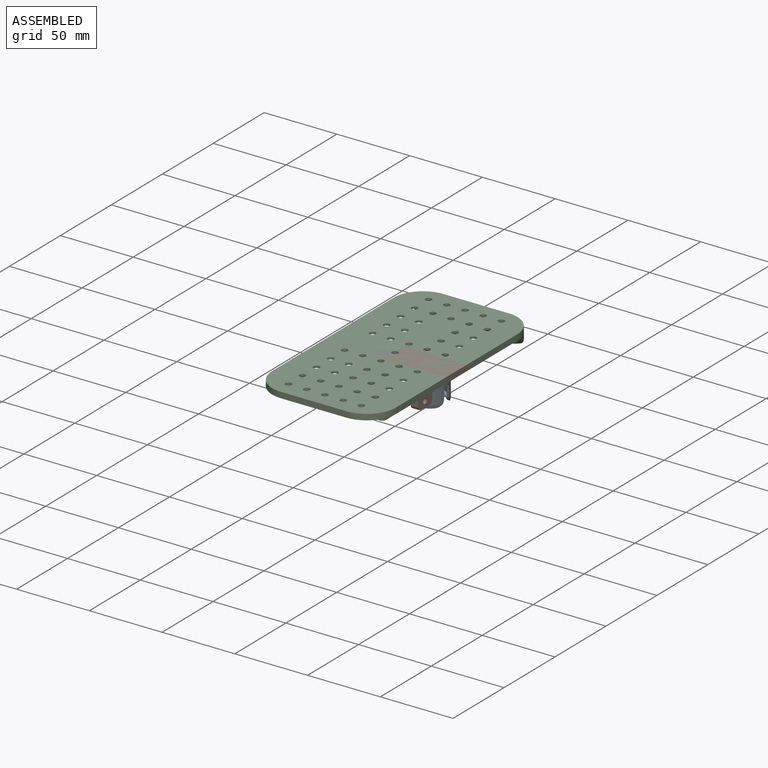
[diagram: assembled view]
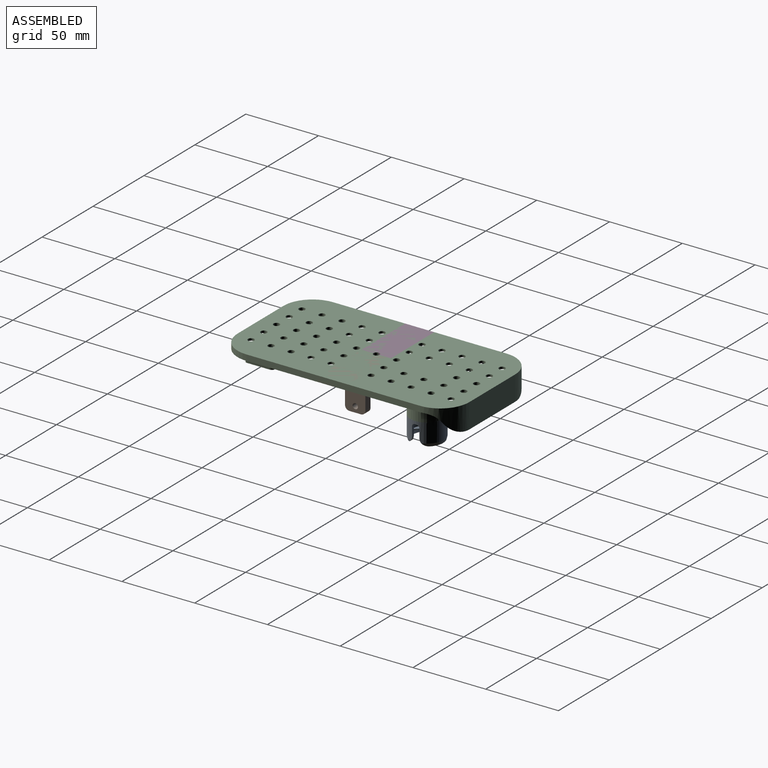
[diagram: assembled view, second angle]
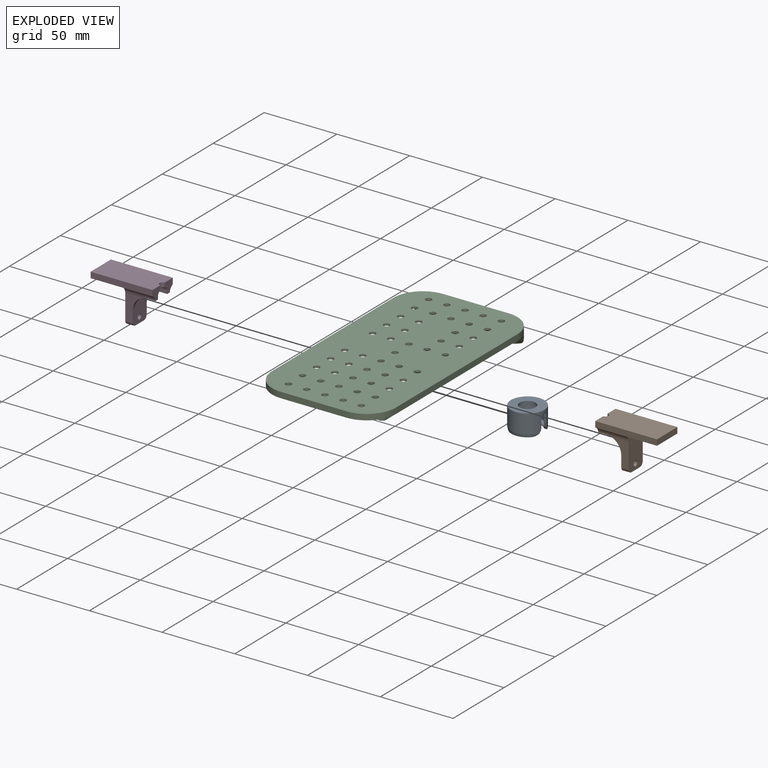
[diagram: exploded view]
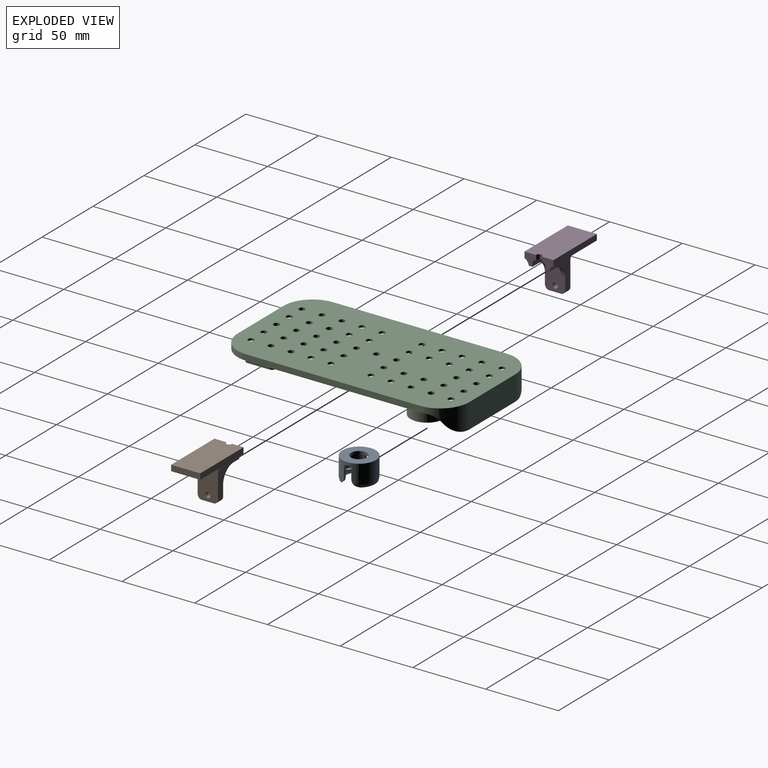
[diagram: exploded view, second angle]
ASSEMBLY  parts=4 mates=2
PART A: 38 faces, bbox 23x23x15 mm
  f0: cylinder r=9.8mm len=19.09mm, axis (0,0,-1), area 218.6mm2, adj f1,f31,f32,f33,f34,f35,f36,f37
  f1: cylinder r=2mm len=2.7mm, axis (-1,0,0), area 6.5mm2, adj f0,f2,f30,f31,f37
  f2: cylinder r=11.5mm len=23mm, axis (0,0,-1), area 825.7mm2, adj f1,f3,f14,f15,f23,f25,f26,f27
  f3: plane 6x1.75mm, normal (0,1,0), area 10.5mm2, adj f2,f4,f14,f29
  f4: cylinder r=9.8mm len=19.09mm, axis (0,0,-1), area 218.6mm2, adj f3,f5,f6,f14,f25,f26,f27,f29
  f5: torus R=8.8mm, axis (0,0,1), area 42.3mm2, adj f4,f14,f25,f30
  f6: cone r=9.8mm half-angle=5.9deg, axis (0,0,-1), area 34.2mm2, adj f4,f7,f27,f29
  f7: torus R=0.25mm, axis (0,0,-1), area 32mm2, adj f6,f8,f10,f11,f12,f13
  f8: torus R=9.4mm, axis (0,0,1), area 4.6mm2, adj f7,f9,f10,f13
  f9: plane 16.09x3.5mm, normal (0,0,1), area 24.3mm2, adj f8,f27,f28,f29
  f10: bspline ~5.62x5.44mm, area 1.4mm2, adj f7,f8,f12,f29
  f11: cone r=9.8mm half-angle=5.9deg, axis (0,0,-1), area 0.9mm2, adj f7,f13,f27
  f12: cone r=9.8mm half-angle=5.9deg, axis (0,0,-1), area 0.9mm2, adj f7,f10,f29
  f13: bspline ~5.62x5.44mm, area 1.4mm2, adj f7,f8,f11,f27
  f14: cylinder r=2mm len=2.7mm, axis (1,0,0), area 6.5mm2, adj f2,f3,f4,f5,f30
  f15: cone r=11mm half-angle=14deg, axis (0,0,-1), area 48.4mm2, adj f2,f16,f34,f36
  f16: plane 16.09x3.5mm, normal (0,0,1), area 24.3mm2, adj f15,f17,f34,f36
  f17: torus R=9.4mm, axis (0,0,1), area 4.6mm2, adj f16,f18,f21,f22
  f18: torus R=0.25mm, axis (0,0,-1), area 32mm2, adj f17,f19,f20,f21,f22,f35
  f19: cone r=9.8mm half-angle=5.9deg, axis (0,0,-1), area 0.9mm2, adj f18,f22,f34
  f20: cone r=9.8mm half-angle=5.9deg, axis (0,0,-1), area 0.9mm2, adj f18,f21,f36
  f21: bspline ~5.62x5.44mm, area 1.4mm2, adj f17,f18,f20,f36
  f22: bspline ~5.62x5.44mm, area 1.4mm2, adj f17,f18,f19,f34
  f23: plane 23x23mm, normal (0,0,-1), area 320.4mm2, adj f2,f24
  f24: cylinder r=5.5mm len=11mm, axis (0,0,-1), area 69.1mm2, adj f23,f30
  f25: cylinder r=2mm len=2.7mm, axis (1,0,0), area 6.5mm2, adj f2,f4,f5,f26,f30
  f26: plane 6x1.75mm, normal (0,1,0), area 10.5mm2, adj f2,f4,f25,f27
  f27: cylinder r=5mm len=5.56mm, axis (-1,0,0), area 14.4mm2, adj f2,f4,f6,f9,f11,f13,f26,f28
  f28: cone r=11mm half-angle=14deg, axis (0,0,-1), area 48.4mm2, adj f2,f9,f27,f29
  f29: cylinder r=5mm len=5.56mm, axis (-1,0,0), area 14.4mm2, adj f2,f3,f4,f6,f9,f10,f12,f28
  f30: plane 23x17.6mm, normal (0,0,1), area 153.7mm2, adj f1,f2,f5,f14,f24,f25,f31,f32
  f31: torus R=8.8mm, axis (0,0,1), area 42.3mm2, adj f0,f1,f30,f32
  f32: cylinder r=2mm len=2.7mm, axis (-1,0,0), area 6.5mm2, adj f0,f2,f30,f31,f33
  f33: plane 6x1.75mm, normal (0,-1,0), area 10.5mm2, adj f0,f2,f32,f34
  f34: cylinder r=5mm len=5.56mm, axis (1,0,0), area 14.4mm2, adj f0,f2,f15,f16,f19,f22,f33,f35
  f35: cone r=9.8mm half-angle=5.9deg, axis (0,0,-1), area 34.2mm2, adj f0,f18,f34,f36
  f36: cylinder r=5mm len=5.56mm, axis (1,0,0), area 14.4mm2, adj f0,f2,f15,f16,f20,f21,f35,f37
  f37: plane 6x1.75mm, normal (0,-1,0), area 10.5mm2, adj f0,f1,f2,f36
PART B: 28 faces, bbox 20x42.5x28.5 mm
  f0: plane 14.33x3mm, normal (0,0,1), area 41.7mm2, adj f1,f2,f21,f22
  f1: plane 25.5x14mm, normal (0,1,0), area 251.8mm2, adj f0,f9,f10,f11,f12,f13,f14,f15
  f2: cylinder r=2.1mm len=4.2mm, axis (0,0,-1), area 19.9mm2, adj f0,f3,f7,f8,f21,f22
  f3: plane 8x7.9mm, normal (0,1,0), area 45mm2, adj f2,f4,f8,f17,f18,f22,f26
  f4: plane 42.5x4mm, normal (-1,0,0), area 170mm2, adj f3,f5,f8,f25,f26
  f5: plane 20x4mm, normal (0,-1,0), area 80mm2, adj f4,f6,f8,f25
  f6: plane 42.5x4mm, normal (1,0,0), area 170mm2, adj f5,f7,f8,f25,f27
  f7: plane 8x7.9mm, normal (0,1,0), area 45mm2, adj f2,f6,f8,f19,f20,f21,f27
  f8: plane 42.5x20mm, normal (0,0,-1), area 843.1mm2, adj f2,f3,f4,f5,f6,f7
  f9: plane 8x5mm, normal (0,0,1), area 40mm2, adj f1,f10,f15,f16
  f10: cylinder r=3mm len=5mm, axis (0,-1,0), area 23.6mm2, adj f1,f9,f11,f16
  f11: plane 16.92x11.89mm, normal (-1,0,0), area 102.7mm2, adj f1,f10,f16,f24,f26
  f12: plane 16.92x11.89mm, normal (1,0,0), area 102.7mm2, adj f1,f15,f16,f23,f27
  f13: cylinder r=1.85mm len=5mm, axis (0,-1,0), area 58.1mm2, adj f1,f16
  f14: cylinder r=1.8mm len=5mm, axis (0,-1,0), area 56.5mm2, adj f1,f16
  f15: cylinder r=3mm len=5mm, axis (0,-1,0), area 23.6mm2, adj f1,f9,f12,f16
  f16: plane 24.5x20mm, normal (0,-1,0), area 325.9mm2, adj f9,f10,f11,f12,f13,f14,f15,f25
  f17: plane 15.8x12.3mm, normal (1,0,0), area 54.4mm2, adj f1,f3,f18,f22,f24
  f18: plane 5.5x2.53mm, normal (0,0,1), area 13.9mm2, adj f3,f17,f24,f26
  f19: plane 15.8x12.3mm, normal (-1,0,0), area 54.4mm2, adj f1,f7,f20,f21,f23
  f20: plane 5.5x2.53mm, normal (0,0,1), area 13.9mm2, adj f7,f19,f23,f27
  f21: cylinder r=3mm len=15.8mm, axis (0,-1,0), area 73.8mm2, adj f0,f1,f2,f7,f19
  f22: cylinder r=3mm len=15.8mm, axis (0,1,0), area 73.8mm2, adj f0,f1,f2,f3,f17
  f23: cylinder r=10.3mm len=10.3mm, axis (-1,0,0), area 40.5mm2, adj f1,f12,f19,f20,f27
  f24: cylinder r=10.3mm len=10.3mm, axis (1,0,0), area 40.5mm2, adj f1,f11,f17,f18,f26
  f25: plane 21.7x20mm, normal (0,0,1), area 434mm2, adj f4,f5,f6,f16
  f26: cylinder r=5mm len=20.8mm, axis (0,1,0), area 116mm2, adj f3,f4,f11,f16,f18,f24
  f27: cylinder r=5mm len=20.8mm, axis (0,1,0), area 116mm2, adj f6,f7,f12,f16,f20,f23
PART C: 190 faces, bbox 90.4x163.7x29.1 mm
  f0: plane 10x6.03mm, normal (0,0,-1), area 46.5mm2, adj f82,f144,f145,f162,f163
  f1: plane 142.08x85mm, normal (0,0,-1), area 1593.1mm2, adj f7,f9,f10,f15,f16,f17,f18,f19
  f2: plane 64.05x6.03mm, normal (0,0,-1), area 315.8mm2, adj f76,f78,f79,f80,f81,f146,f147,f150
  f3: plane 116.04x26.03mm, normal (0,0,-1), area 2735.7mm2, adj f8,f9,f11,f28,f54,f55,f56,f59
  f4: plane 24.57x6.29mm, normal (0,0,-1), area 107.7mm2, adj f7,f27,f57,f58,f130,f184
  f5: plane 116.04x26.03mm, normal (0,0,-1), area 2735.7mm2, adj f10,f11,f29,f30,f36,f37,f38,f39
  f6: plane 24.57x6.29mm, normal (0,0,-1), area 107.7mm2, adj f31,f32,f34,f35,f131,f183
  f7: cylinder r=3mm len=16.94mm, axis (1,0,0), area 66.4mm2, adj f1,f4,f27,f130
  f8: cylinder r=3mm len=16.94mm, axis (1,0,0), area 66.4mm2, adj f3,f12,f28,f133
  f9: cylinder r=3mm len=104.62mm, axis (0,1,0), area 439.6mm2, adj f1,f3,f28,f88,f93,f118,f160,f185
  f10: cylinder r=3mm len=104.62mm, axis (0,1,0), area 439.6mm2, adj f1,f5,f30,f87,f91,f121,f159,f180
  f11: cylinder r=11.5mm len=26.5mm, axis (0,0,1), area 1626.4mm2, adj f3,f5,f33,f132,f133,f134,f135,f150
  f12: cylinder r=2mm len=16.98mm, axis (1,0,0), area 53mm2, adj f8,f85,f93,f96,f133,f188
  f13: cylinder r=2mm len=6.03mm, axis (1,0,0), area 18.9mm2, adj f24,f85,f139,f142
  f14: cylinder r=5.5mm len=20mm, axis (0,0,1), area 691.2mm2, adj f33,f94
  f15: plane 119.25x4mm, normal (-1,0,0), area 477mm2, adj f1,f16,f22,f23
  f16: cylinder r=20mm len=20mm, axis (0,0,1), area 125.7mm2, adj f1,f15,f17,f23
  f17: plane 45x4mm, normal (0,-1,0), area 180mm2, adj f1,f16,f18,f23
  f18: cylinder r=20mm len=20mm, axis (0,0,1), area 125.7mm2, adj f1,f17,f19,f23
  f19: plane 119.25x4mm, normal (1,0,0), area 477mm2, adj f1,f18,f20,f23
  f20: cylinder r=20mm len=20mm, axis (0,0,1), area 333.8mm2, adj f1,f19,f21,f23,f87,f89
  f21: plane 45x17mm, normal (0,1,0), area 765mm2, adj f20,f22,f23,f86,f89,f90
  f22: cylinder r=20mm len=20mm, axis (0,0,1), area 333.8mm2, adj f1,f15,f21,f23,f88,f90
  f23: plane 159.25x85mm, normal (0,0,1), area 12514mm2, adj f15,f16,f17,f18,f19,f20,f21,f22
  f24: plane 24.55x6.03mm, normal (0,0,-1), area 119.1mm2, adj f13,f74,f75,f138,f141,f151
  f25: plane 19.98x10mm, normal (0,0,-1), area 172.1mm2, adj f68,f69,f128,f166,f167,f176
  f26: plane 19.98x10mm, normal (0,0,-1), area 172.1mm2, adj f48,f49,f129,f164,f165,f177
  f27: torus R=12.04mm, axis (0,0,-1), area 68.4mm2, adj f1,f4,f7,f117,f161,f184
  f28: torus R=12.04mm, axis (0,0,-1), area 91.4mm2, adj f3,f8,f9,f93
  f29: cylinder r=3mm len=16.94mm, axis (1,0,0), area 66.4mm2, adj f5,f30,f92,f135
  f30: torus R=12.04mm, axis (0,0,-1), area 91.4mm2, adj f5,f10,f29,f91
  f31: cylinder r=3mm len=16.94mm, axis (1,0,0), area 66.4mm2, adj f1,f6,f32,f131
  f32: torus R=12.04mm, axis (0,0,-1), area 68.4mm2, adj f1,f6,f31,f122,f158,f183
  f33: plane 23x23mm, normal (0,0,-1), area 320.4mm2, adj f11,f14
  f34: cylinder r=2.1mm len=4.2mm, axis (0,0,1), area 19.8mm2, adj f6,f23
  f35: cylinder r=2.1mm len=4.2mm, axis (0,0,1), area 19.8mm2, adj f6,f23
  f36: cylinder r=2.1mm len=4.2mm, axis (0,0,1), area 19.8mm2, adj f5,f23
  f37: cylinder r=2.1mm len=4.2mm, axis (0,0,1), area 19.8mm2, adj f5,f23
  f38: cylinder r=2.1mm len=4.2mm, axis (0,0,1), area 19.8mm2, adj f5,f23
  f39: cylinder r=2.1mm len=4.2mm, axis (0,0,1), area 19.8mm2, adj f5,f23
  f40: cylinder r=2.1mm len=4.2mm, axis (0,0,1), area 19.8mm2, adj f5,f23
  f41: cylinder r=2.1mm len=4.2mm, axis (0,0,1), area 19.8mm2, adj f5,f23
  f42: cylinder r=2.1mm len=4.2mm, axis (0,0,1), area 19.8mm2, adj f5,f23
  f43: cylinder r=2.1mm len=4.2mm, axis (0,0,1), area 19.8mm2, adj f5,f23
  f44: cylinder r=2.1mm len=4.2mm, axis (0,0,1), area 19.8mm2, adj f5,f23
  f45: cylinder r=2.1mm len=4.2mm, axis (0,0,1), area 19.8mm2, adj f5,f23
  f46: cylinder r=2.1mm len=4.2mm, axis (0,0,1), area 19.8mm2, adj f5,f23
  f47: cylinder r=2.1mm len=4.2mm, axis (0,0,1), area 19.8mm2, adj f5,f23
  f48: cylinder r=2.1mm len=4.2mm, axis (0,0,1), area 19.8mm2, adj f23,f26
  f49: cylinder r=2.1mm len=4.2mm, axis (0,0,1), area 19.8mm2, adj f23,f26
  f50: cylinder r=2.1mm len=4.2mm, axis (0,0,1), area 19.8mm2, adj f5,f23
  f51: cylinder r=2.1mm len=4.2mm, axis (0,0,1), area 19.8mm2, adj f5,f23
  f52: cylinder r=2.1mm len=4.2mm, axis (0,0,1), area 19.8mm2, adj f5,f23
  f53: cylinder r=2.1mm len=4.2mm, axis (0,0,1), area 19.8mm2, adj f5,f23
  f54: cylinder r=2.1mm len=4.2mm, axis (0,0,1), area 19.8mm2, adj f3,f23
  f55: cylinder r=2.1mm len=4.2mm, axis (0,0,1), area 19.8mm2, adj f3,f23
  f56: cylinder r=2.1mm len=4.2mm, axis (0,0,1), area 19.8mm2, adj f3,f23
  f57: cylinder r=2.1mm len=4.2mm, axis (0,0,1), area 19.8mm2, adj f4,f23
  f58: cylinder r=2.1mm len=4.2mm, axis (0,0,1), area 19.8mm2, adj f4,f23
  f59: cylinder r=2.1mm len=4.2mm, axis (0,0,1), area 19.8mm2, adj f3,f23
  f60: cylinder r=2.1mm len=4.2mm, axis (0,0,1), area 19.8mm2, adj f3,f23
  f61: cylinder r=2.1mm len=4.2mm, axis (0,0,1), area 19.8mm2, adj f3,f23
  f62: cylinder r=2.1mm len=4.2mm, axis (0,0,1), area 19.8mm2, adj f3,f23
  f63: cylinder r=2.1mm len=4.2mm, axis (0,0,1), area 19.8mm2, adj f3,f23
  f64: cylinder r=2.1mm len=4.2mm, axis (0,0,1), area 19.8mm2, adj f3,f23
  f65: cylinder r=2.1mm len=4.2mm, axis (0,0,1), area 19.8mm2, adj f3,f23
  f66: cylinder r=2.1mm len=4.2mm, axis (0,0,1), area 19.8mm2, adj f3,f23
  f67: cylinder r=2.1mm len=4.2mm, axis (0,0,1), area 19.8mm2, adj f3,f23
  f68: cylinder r=2.1mm len=4.2mm, axis (0,0,1), area 19.8mm2, adj f23,f25
  f69: cylinder r=2.1mm len=4.2mm, axis (0,0,1), area 19.8mm2, adj f23,f25
  f70: cylinder r=2.1mm len=4.2mm, axis (0,0,1), area 19.8mm2, adj f3,f23
  f71: cylinder r=2.1mm len=4.2mm, axis (0,0,1), area 19.8mm2, adj f3,f23
  f72: cylinder r=2.1mm len=4.2mm, axis (0,0,1), area 19.8mm2, adj f3,f23
  f73: cylinder r=2.1mm len=4.2mm, axis (0,0,1), area 19.8mm2, adj f3,f23
  f74: cylinder r=2.1mm len=4.2mm, axis (0,0,1), area 52.8mm2, adj f23,f24
  f75: cylinder r=2.1mm len=4.2mm, axis (0,0,1), area 52.8mm2, adj f23,f24
  f76: cylinder r=2.1mm len=4.2mm, axis (0,0,1), area 52.8mm2, adj f2,f23
  f77: cylinder r=2.1mm len=4.2mm, axis (0,0,1), area 52.8mm2, adj f1,f23
  f78: cylinder r=2.1mm len=4.2mm, axis (0,0,1), area 52.8mm2, adj f2,f23
  f79: cylinder r=2.1mm len=4.2mm, axis (0,0,1), area 52.8mm2, adj f2,f23
  f80: cylinder r=2.1mm len=4.2mm, axis (0,0,1), area 52.8mm2, adj f2,f23
  f81: cylinder r=2.1mm len=4.2mm, axis (0,0,1), area 52.8mm2, adj f2,f23
  f82: cylinder r=2.1mm len=4.2mm, axis (0,0,1), area 52.8mm2, adj f0,f23
  f83: cylinder r=17mm len=15.2mm, axis (0,0,1), area 135.7mm2, adj f85,f88,f90,f93
  f84: cylinder r=17mm len=15.2mm, axis (0,0,1), area 135.8mm2, adj f85,f87,f89,f91
  f85: plane 45x11mm, normal (0,-1,0), area 458.8mm2, adj f12,f13,f83,f84,f86,f89,f90,f92
  f86: plane 44.98x3mm, normal (0,0,-1), area 125.9mm2, adj f21,f85,f89,f90
  f87: cylinder r=12mm len=14.29mm, axis (0.71,0.71,0), area 43.9mm2, adj f1,f10,f20,f84,f89,f91
  f88: cylinder r=12mm len=14.29mm, axis (0.71,-0.71,0), area 43.9mm2, adj f1,f9,f22,f83,f90,f93
  f89: cylinder r=20.8mm len=18.87mm, axis (0.71,0.71,0), area 63.4mm2, adj f20,f21,f84,f85,f86,f87
  f90: cylinder r=20.8mm len=18.87mm, axis (0.71,-0.71,0), area 63.4mm2, adj f21,f22,f83,f85,f86,f88
  f91: torus R=15mm, axis (0,0,1), area 68.4mm2, adj f10,f30,f84,f87,f92
  f92: cylinder r=2mm len=16.98mm, axis (1,0,0), area 53mm2, adj f29,f85,f91,f98,f135,f189
  f93: torus R=15mm, axis (0,0,1), area 68.4mm2, adj f9,f12,f28,f83,f88
  f94: plane 11x11mm, normal (0,0,-1), area 95mm2, adj f14
  f95: plane 29.85x10.21mm, normal (1,0,0), area 121.7mm2, adj f97,f138,f139,f140,f151,f155,f170,f174
  f96: plane 31.2x11.58mm, normal (-1,0,0), area 131.2mm2, adj f12,f97,f133,f155,f170,f182,f188
  f97: plane 16.97x2mm, normal (0,0,-1), area 33.5mm2, adj f95,f96,f155,f170
  f98: plane 31.2x11.58mm, normal (1,0,0), area 131.2mm2, adj f92,f100,f135,f154,f171,f181,f189
  f99: plane 29.85x10.21mm, normal (-1,0,0), area 121.7mm2, adj f100,f141,f142,f143,f151,f154,f171,f175
  f100: plane 16.97x2mm, normal (0,0,-1), area 33.5mm2, adj f98,f99,f154,f171
  f101: plane 16x3.5mm, normal (1,0,0), area 54mm2, adj f109,f110,f123,f144,f162,f163
  f102: plane 16x3.5mm, normal (-1,0,0), area 54mm2, adj f109,f110,f123,f145,f162,f163
  f103: plane 7.03x3.5mm, normal (0,-1,0), area 24.6mm2, adj f116,f119,f123,f178
  f104: plane 7.03x3.5mm, normal (0,1,0), area 24.6mm2, adj f123,f126,f127,f179
  f105: plane 16x6mm, normal (1,0,0), area 94mm2, adj f106,f108,f123,f166,f167,f176
  f106: plane 23.48x3.5mm, normal (0,-1,0), area 82.2mm2, adj f105,f107,f123,f166
  f107: plane 16x3.5mm, normal (-1,0,0), area 56mm2, adj f106,f108,f123,f128
  f108: plane 23.48x3.5mm, normal (0,1,0), area 82.2mm2, adj f105,f107,f123,f167
  f109: plane 7.03x1mm, normal (0,1,0), area 7mm2, adj f101,f102,f123,f163
  f110: plane 7.03x1mm, normal (0,-1,0), area 7mm2, adj f101,f102,f123,f162
  f111: plane 23.48x3.5mm, normal (0,-1,0), area 82.2mm2, adj f112,f114,f123,f165
  f112: plane 16x6mm, normal (-1,0,0), area 94mm2, adj f111,f113,f123,f164,f165,f177
  f113: plane 23.48x3.5mm, normal (0,1,0), area 82.2mm2, adj f112,f114,f123,f164
  f114: plane 16x3.5mm, normal (1,0,0), area 56mm2, adj f111,f113,f123,f129
  f115: plane 9.25x3.5mm, normal (-1,0,0), area 25.9mm2, adj f117,f123,f130,f137,f153
  f116: plane 9.25x3.5mm, normal (1,0,0), area 25.9mm2, adj f103,f123,f137,f148,f153
  f117: plane 31.03x6mm, normal (0,-1,0), area 180.2mm2, adj f27,f115,f123,f130,f161,f184
  f118: plane 31.74x6mm, normal (0,1,0), area 181.8mm2, adj f9,f123,f124,f132,f160,f185
  f119: plane 9.25x3.5mm, normal (-1,0,0), area 25.9mm2, adj f103,f123,f136,f149,f152
  f120: plane 9.25x3.5mm, normal (1,0,0), area 25.9mm2, adj f122,f123,f131,f136,f152
  f121: plane 31.74x6mm, normal (0,1,0), area 181.8mm2, adj f10,f123,f125,f134,f159,f180
  f122: plane 31.03x6mm, normal (0,-1,0), area 180.2mm2, adj f32,f120,f123,f131,f158,f183
  f123: plane 83.06x75mm, normal (0,0,-1), area 882.4mm2, adj f101,f102,f103,f104,f105,f106,f107,f108
  f124: plane 69.7x11.58mm, normal (-1,0,0), area 263.9mm2, adj f118,f123,f132,f169,f186
  f125: plane 69.7x11.58mm, normal (1,0,0), area 263.9mm2, adj f121,f123,f134,f168,f187
  f126: plane 68.35x10.21mm, normal (-1,0,0), area 254.8mm2, adj f104,f123,f146,f150,f168,f172
  f127: plane 68.35x10.21mm, normal (1,0,0), area 254.8mm2, adj f104,f123,f147,f150,f169,f173
  f128: cylinder r=3mm len=16mm, axis (0,-1,0), area 65.1mm2, adj f25,f107,f166,f167
  f129: cylinder r=3mm len=16mm, axis (0,1,0), area 65.1mm2, adj f26,f114,f164,f165
  f130: cylinder r=3mm len=9.75mm, axis (0,-1,0), area 40.4mm2, adj f4,f7,f115,f117,f137,f184
  f131: cylinder r=3mm len=9.75mm, axis (0,1,0), area 40.4mm2, adj f6,f31,f120,f122,f136,f183
  f132: cylinder r=3mm len=72.02mm, axis (0,-1,0), area 331.2mm2, adj f3,f11,f118,f124,f185,f186
  f133: cylinder r=3mm len=33.34mm, axis (0,-1,0), area 138.5mm2, adj f3,f8,f11,f12,f96,f182
  f134: cylinder r=3mm len=72.02mm, axis (0,1,0), area 331.2mm2, adj f5,f11,f121,f125,f180,f187
  f135: cylinder r=3mm len=33.34mm, axis (0,1,0), area 138.5mm2, adj f5,f11,f29,f92,f98,f181
  f136: plane 3.04x3.04mm, normal (0,-0.71,-0.71), area 8.1mm2, adj f1,f119,f120,f131,f149,f152
  f137: plane 3.04x3.04mm, normal (0,-0.71,-0.71), area 8.1mm2, adj f1,f115,f116,f130,f148,f153
  f138: cylinder r=0.5mm len=26.65mm, axis (0,1,0), area 20.1mm2, adj f24,f95,f139,f151
  f139: torus R=1.5mm, axis (1,0,0), area 2.2mm2, adj f13,f95,f138,f140
  f140: cylinder r=0.5mm len=6mm, axis (0,0,-1), area 4mm2, adj f85,f95,f139,f155
  f141: cylinder r=0.5mm len=26.65mm, axis (0,-1,0), area 20.1mm2, adj f24,f99,f142,f151
  f142: torus R=1.5mm, axis (1,0,0), area 2.2mm2, adj f13,f99,f141,f143
  f143: cylinder r=0.5mm len=6mm, axis (0,0,1), area 4mm2, adj f85,f99,f142,f154
  f144: cylinder r=0.5mm len=13.32mm, axis (0,1,0), area 9.2mm2, adj f0,f101,f162,f163
  f145: cylinder r=0.5mm len=13.32mm, axis (0,-1,0), area 9.2mm2, adj f0,f102,f162,f163
  f146: cylinder r=0.5mm len=66.65mm, axis (0,-1,0), area 51.3mm2, adj f2,f126,f150,f179
  f147: cylinder r=0.5mm len=66.65mm, axis (0,1,0), area 51.3mm2, adj f2,f127,f150,f179
  f148: cylinder r=0.5mm len=9.75mm, axis (0,1,0), area 7.3mm2, adj f1,f116,f137,f178
  f149: cylinder r=0.5mm len=9.75mm, axis (0,-1,0), area 7.3mm2, adj f1,f119,f136,f178
  f150: torus R=15.5mm, axis (0,0,1), area 42.5mm2, adj f2,f11,f126,f127,f146,f147,f172,f173
  f151: torus R=15.5mm, axis (0,0,1), area 42.5mm2, adj f11,f24,f95,f99,f138,f141,f174,f175
  f152: cylinder r=4mm len=2.83mm, axis (-1,0,0), area 6.3mm2, adj f119,f120,f123,f136
  f153: cylinder r=4mm len=2.83mm, axis (1,0,0), area 6.3mm2, adj f115,f116,f123,f137
  f154: cylinder r=4mm len=4mm, axis (-1,0,0), area 13.6mm2, adj f85,f98,f99,f100,f143,f189
  f155: cylinder r=4mm len=4mm, axis (1,0,0), area 13.6mm2, adj f85,f95,f96,f97,f140,f188
  f156: cylinder r=4mm len=15.2mm, axis (0,1,0), area 95.5mm2, adj f1,f123,f160,f161
  f157: cylinder r=4mm len=15.2mm, axis (0,1,0), area 95.5mm2, adj f1,f123,f158,f159
  f158: torus R=6.4mm, axis (0,-1,0), area 18.7mm2, adj f1,f32,f122,f123,f157
  f159: torus R=6.4mm, axis (0,-1,0), area 19.1mm2, adj f1,f10,f121,f123,f157
  f160: torus R=6.4mm, axis (0,-1,0), area 19.1mm2, adj f1,f9,f118,f123,f156
  f161: torus R=6.4mm, axis (0,-1,0), area 18.7mm2, adj f1,f27,f117,f123,f156
  f162: cylinder r=3mm len=7.03mm, axis (1,0,0), area 32.3mm2, adj f0,f101,f102,f110,f144,f145
  f163: cylinder r=3mm len=7.03mm, axis (-1,0,0), area 32.3mm2, adj f0,f101,f102,f109,f144,f145
  f164: cylinder r=3mm len=23.48mm, axis (-1,0,0), area 105.1mm2, adj f26,f112,f113,f129,f177
  f165: cylinder r=3mm len=23.48mm, axis (1,0,0), area 105.1mm2, adj f26,f111,f112,f129,f177
  f166: cylinder r=3mm len=23.48mm, axis (1,0,0), area 105.1mm2, adj f25,f105,f106,f128,f176
  f167: cylinder r=3mm len=23.48mm, axis (-1,0,0), area 105.1mm2, adj f25,f105,f108,f128,f176
  f168: torus R=21.5mm, axis (0,0,1), area 34.4mm2, adj f11,f123,f125,f126,f172,f187
  f169: torus R=21.5mm, axis (0,0,1), area 34.4mm2, adj f11,f123,f124,f127,f173,f186
  f170: torus R=21.5mm, axis (0,0,1), area 34.4mm2, adj f11,f95,f96,f97,f174,f182
  f171: torus R=21.5mm, axis (0,0,1), area 34.4mm2, adj f11,f98,f99,f100,f175,f181
  f172: cylinder r=0.5mm len=12.16mm, axis (0,0,1), area 8.5mm2, adj f11,f126,f150,f168
  f173: cylinder r=0.5mm len=12.16mm, axis (0,0,1), area 8.5mm2, adj f11,f127,f150,f169
  f174: cylinder r=0.5mm len=12.16mm, axis (0,0,1), area 8.5mm2, adj f11,f95,f151,f170
  f175: cylinder r=0.5mm len=12.16mm, axis (0,0,1), area 8.5mm2, adj f11,f99,f151,f171
  f176: cylinder r=0.5mm len=13.32mm, axis (0,1,0), area 9.2mm2, adj f25,f105,f166,f167
  f177: cylinder r=0.5mm len=13.32mm, axis (0,-1,0), area 9.2mm2, adj f26,f112,f164,f165
  f178: cylinder r=0.5mm len=7.03mm, axis (1,0,0), area 5.1mm2, adj f1,f103,f148,f149
  f179: cylinder r=0.5mm len=7.03mm, axis (-1,0,0), area 5.1mm2, adj f2,f104,f146,f147
  f180: cylinder r=0.5mm len=29.34mm, axis (-1,0,0), area 21.7mm2, adj f5,f10,f121,f134
  f181: cylinder r=0.5mm len=14.7mm, axis (0,0,1), area 6.8mm2, adj f11,f98,f135,f171
  f182: cylinder r=0.5mm len=14.7mm, axis (0,0,1), area 6.8mm2, adj f11,f96,f133,f170
  f183: cylinder r=0.5mm len=28.3mm, axis (1,0,0), area 20.8mm2, adj f6,f32,f122,f131
  f184: cylinder r=0.5mm len=28.3mm, axis (1,0,0), area 20.8mm2, adj f4,f27,f117,f130
  f185: cylinder r=0.5mm len=29.34mm, axis (-1,0,0), area 21.7mm2, adj f3,f9,f118,f132
  f186: cylinder r=0.5mm len=14.7mm, axis (0,0,1), area 6.8mm2, adj f11,f124,f132,f169
  f187: cylinder r=0.5mm len=14.7mm, axis (0,0,1), area 6.8mm2, adj f11,f125,f134,f168
  f188: cylinder r=0.5mm len=7.32mm, axis (0,0,1), area 4.5mm2, adj f12,f85,f96,f155
  f189: cylinder r=0.5mm len=7.32mm, axis (0,0,-1), area 4.5mm2, adj f85,f92,f98,f154
PART D: same geometry as B
PLACE A rot(axis=(0,1,0),180deg) t=(0,34.75,-28)mm
PLACE B rot(axis=(-0.71,0.71,0),180deg) t=(2.5,-0.12,0)mm
PLACE C t=(0,30,0)mm fixed
PLACE D rot(axis=(-0.71,-0.71,0),180deg) t=(-2.5,-0.12,0)mm
MATE fastened B.f5 <-> C.f19  axis (1,0,0) through (42.5,-0.12,-2)mm
MATE fastened C.f15 <-> D.f5  axis (-1,0,0) through (-42.5,-0.12,-2)mm
